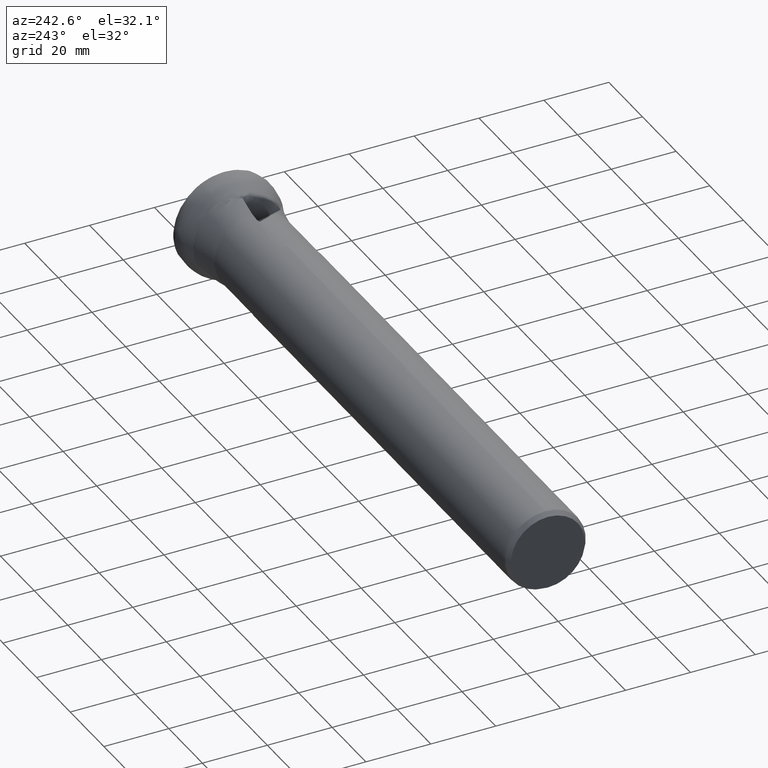
[diagram: clean part render]
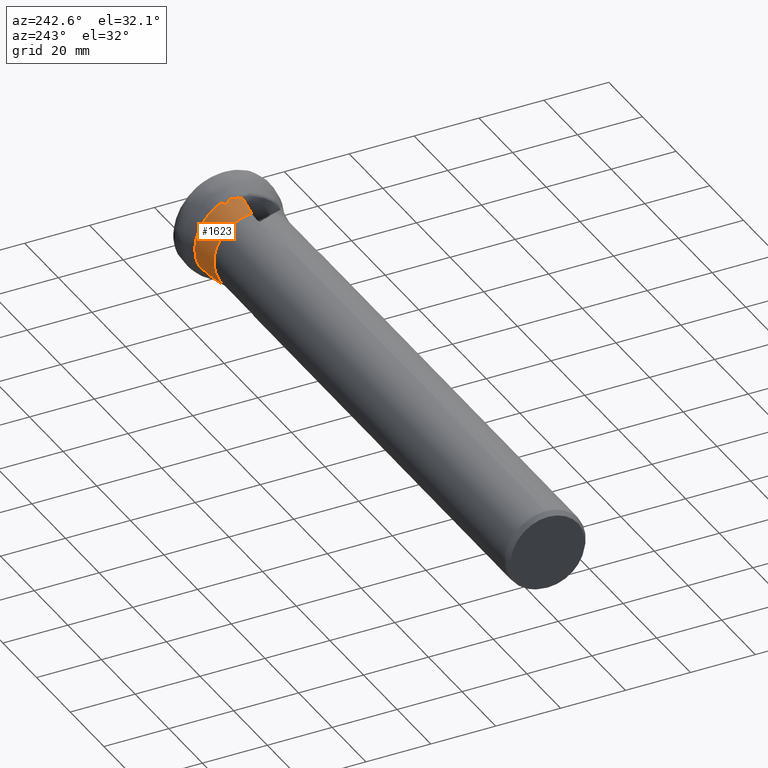
[diagram: same view with one face highlighted and labeled with its STEP entity id]
A machine part, auxiliary view. The second image highlights one B-rep face of the part: STEP entity #1623.
In plain terms, the highlighted conical surface has half-angle 10.845 deg.
Its self-contained STEP definition (entity closure, byte-faithful):
#17 = VERTEX_POINT ( 'NONE', #140 ) ;
#48 = CARTESIAN_POINT ( 'NONE',  ( -12.89099991687611900, 0.3601079019870963600, 13.68158724386874100 ) ) ;
#140 = CARTESIAN_POINT ( 'NONE',  ( -11.02925917703956000, 12.79861067441094800, -5.779395626261756300 ) ) ;
#215 = EDGE_CURVE ( 'NONE', #267, #3379, #2310, .T. ) ;
#258 = CARTESIAN_POINT ( 'NONE',  ( -11.02925917703945500, 0.0000000000000000000, 0.0000000000000000000 ) ) ;
#265 = AXIS2_PLACEMENT_3D ( 'NONE', #4804, #2497, #5194 ) ;
#267 = VERTEX_POINT ( 'NONE', #723 ) ;
#308 = DIRECTION ( 'NONE',  ( 1.000000000000000000, -0.0000000000000000000, -0.0000000000000000000 ) ) ;
#317 = CARTESIAN_POINT ( 'NONE',  ( -12.41499484774846500, 4.575684184903968400, 12.99796450079024300 ) ) ;
#369 = CARTESIAN_POINT ( 'NONE',  ( -13.40527637212814800, 11.74805511178591600, -6.827262013307660000 ) ) ;
#376 = CARTESIAN_POINT ( 'NONE',  ( -12.67995389040324200, 12.14865028361487700, -6.391648894483800800 ) ) ;
#414 = CARTESIAN_POINT ( 'NONE',  ( -12.84699154354206200, 0.4598034669791161200, 13.68703556957243400 ) ) ;
#453 = CARTESIAN_POINT ( 'NONE',  ( -12.56890336999146900, 1.221187558967547800, 13.69412576938039400 ) ) ;
#473 = CARTESIAN_POINT ( 'NONE',  ( -12.45613410986681100, 1.332141020560870600, 13.70504729325338600 ) ) ;
#591 = CARTESIAN_POINT ( 'NONE',  ( -19.32556363557016300, 0.8100564290826706100, 12.42721098533912500 ) ) ;
#717 = DIRECTION ( 'NONE',  ( 1.000000000000000000, -0.0000000000000000000, -0.0000000000000000000 ) ) ;
#723 = CARTESIAN_POINT ( 'NONE',  ( -12.84435909463576800, 0.4954418570034943000, 13.68629653410403400 ) ) ;
#742 = CARTESIAN_POINT ( 'NONE',  ( -11.72448605640247100, 3.855970498631013000, 13.36466385005026900 ) ) ;
#760 = CARTESIAN_POINT ( 'NONE',  ( -12.28883719707391900, 5.221356548987552400, 12.77657326314242200 ) ) ;
#769 = CARTESIAN_POINT ( 'NONE',  ( -12.84435909463576800, 0.4954418570034943000, 13.68629653410403400 ) ) ;
#792 = CARTESIAN_POINT ( 'NONE',  ( -17.69207303484448300, 8.667618504329912100, -9.592486571145551400 ) ) ;
#804 = CARTESIAN_POINT ( 'NONE',  ( -12.84523939015374300, 0.4835626985558640900, 13.68655779933857600 ) ) ;
#819 = CARTESIAN_POINT ( 'NONE',  ( -11.88750792623013200, 12.50377100925288000, -6.027180828594851800 ) ) ;
#822 = CARTESIAN_POINT ( 'NONE',  ( -12.84611687358338200, 0.4716832289750594900, 13.68680414462409300 ) ) ;
#844 = EDGE_LOOP ( 'NONE', ( #5101, #1935, #4055, #3120, #2477, #1312, #2560, #927, #3861, #3454, #4177 ) ) ;
#908 = EDGE_CURVE ( 'NONE', #2673, #17, #4087, .T. ) ;
#927 = ORIENTED_EDGE ( 'NONE', *, *, #1829, .F. ) ;
#940 = EDGE_CURVE ( 'NONE', #5095, #3834, #2419, .T. ) ;
#944 = CARTESIAN_POINT ( 'NONE',  ( -12.86168660798711000, 0.4265649338345133800, 13.68533530213833100 ) ) ;
#1175 = CARTESIAN_POINT ( 'NONE',  ( -12.04374141367470600, 5.541993209497135800, 12.69180577270945100 ) ) ;
#1181 = CONICAL_SURFACE ( 'NONE', #4317, 14.04299999999999700, 0.1892875687147432000 ) ;
#1192 =( BOUNDED_CURVE ( )  B_SPLINE_CURVE ( 3, ( #3697, #4082, #4833, #2519 ),
 .UNSPECIFIED., .F., .F. ) 
 B_SPLINE_CURVE_WITH_KNOTS ( ( 4, 4 ),
 ( 4.313403113203619000, 4.439529772579418500 ),
 .UNSPECIFIED. ) 
 CURVE ( )  GEOMETRIC_REPRESENTATION_ITEM ( )  RATIONAL_B_SPLINE_CURVE ( ( 1.000000000000000000, 0.9986747781023805900, 0.9986747781023805900, 1.000000000000000000 ) ) 
 REPRESENTATION_ITEM ( '' )  );
#1229 = CARTESIAN_POINT ( 'NONE',  ( -11.02925917703956000, 12.79861067441094800, -5.779395626261756300 ) ) ;
#1242 = CARTESIAN_POINT ( 'NONE',  ( -11.61871782507151900, 3.128100680945735200, 13.57430880262749000 ) ) ;
#1275 = EDGE_CURVE ( 'NONE', #1501, #1886, #5232, .T. ) ;
#1312 = ORIENTED_EDGE ( 'NONE', *, *, #1667, .F. ) ;
#1446 = CARTESIAN_POINT ( 'NONE',  ( -11.72448605640247100, 3.855970498631013000, 13.36466385005026900 ) ) ;
#1501 = VERTEX_POINT ( 'NONE', #1446 ) ;
#1552 = EDGE_CURVE ( 'NONE', #2349, #3834, #4308, .T. ) ;
#1596 = CARTESIAN_POINT ( 'NONE',  ( -11.69241055549228200, 5.756689741679960700, 12.66956082630969500 ) ) ;
#1622 = B_SPLINE_CURVE_WITH_KNOTS ( 'NONE', 3,
 ( #4469, #1703, #5220, #2922, #453, #3302 ),
 .UNSPECIFIED., .F., .F.,
 ( 4, 2, 4 ),
 ( 5.421010862427522200E-019, 0.0004689846191887401400, 0.0009379692383774801700 ),
 .UNSPECIFIED. ) ;
#1623 = ADVANCED_FACE ( 'NONE', ( #4719 ), #1181, .T. ) ;
#1667 = EDGE_CURVE ( 'NONE', #17, #3085, #2292, .T. ) ;
#1703 = CARTESIAN_POINT ( 'NONE',  ( -12.83264201964153300, 0.6535580663402837900, 13.68281899243309300 ) ) ;
#1742 = CARTESIAN_POINT ( 'NONE',  ( -11.02925917703947100, 5.760464015571924000, 12.80714266826527000 ) ) ;
#1821 = CARTESIAN_POINT ( 'NONE',  ( -19.32556363557016300, 6.787161694477367400, -10.44156120632593100 ) ) ;
#1829 = EDGE_CURVE ( 'NONE', #5095, #2673, #2563, .T. ) ;
#1886 = VERTEX_POINT ( 'NONE', #1242 ) ;
#1929 = EDGE_CURVE ( 'NONE', #267, #3081, #1622, .T. ) ;
#1935 = ORIENTED_EDGE ( 'NONE', *, *, #1929, .T. ) ;
#2029 = CARTESIAN_POINT ( 'NONE',  ( -11.28786443042186600, 5.820760581350417500, 12.72539041503917500 ) ) ;
#2054 = EDGE_CURVE ( 'NONE', #2349, #3379, #2196, .T. ) ;
#2196 =( BOUNDED_CURVE ( )  B_SPLINE_CURVE ( 3, ( #48, #2577, #944, #3767 ),
 .UNSPECIFIED., .F., .F. ) 
 B_SPLINE_CURVE_WITH_KNOTS ( ( 4, 4 ),
 ( 4.245311037378050000, 4.252302622021335100 ),
 .UNSPECIFIED. ) 
 CURVE ( )  GEOMETRIC_REPRESENTATION_ITEM ( )  RATIONAL_B_SPLINE_CURVE ( ( 1.000000000000000000, 0.9999959264828295300, 0.9999959264828295300, 1.000000000000000000 ) ) 
 REPRESENTATION_ITEM ( '' )  );
#2233 = CARTESIAN_POINT ( 'NONE',  ( -11.69077448769910500, 3.615201630161862100, 13.44085238544985500 ) ) ;
#2281 = CARTESIAN_POINT ( 'NONE',  ( -13.40527637212814800, 11.74805511178591600, -6.827262013307660000 ) ) ;
#2292 = CIRCLE ( 'NONE', #3822, 14.04299999999999700 ) ;
#2310 =( BOUNDED_CURVE ( )  B_SPLINE_CURVE ( 3, ( #769, #804, #822, #414 ),
 .UNSPECIFIED., .F., .F. ) 
 B_SPLINE_CURVE_WITH_KNOTS ( ( 4, 4 ),
 ( 2.767099512888700800, 2.769610021100673300 ),
 .UNSPECIFIED. ) 
 CURVE ( )  GEOMETRIC_REPRESENTATION_ITEM ( )  RATIONAL_B_SPLINE_CURVE ( ( 1.000000000000000000, 0.9999994747791121100, 0.9999994747791121100, 1.000000000000000000 ) ) 
 REPRESENTATION_ITEM ( '' )  );
#2336 = CARTESIAN_POINT ( 'NONE',  ( -15.03643699271819600, 0.5101314769261138200, 13.26647086381266600 ) ) ;
#2349 = VERTEX_POINT ( 'NONE', #4312 ) ;
#2412 = CARTESIAN_POINT ( 'NONE',  ( -11.97107633189266600, 3.954262299965301000, 13.28695688663165900 ) ) ;
#2419 = CIRCLE ( 'NONE', #265, 12.45358439536311000 ) ;
#2430 = CARTESIAN_POINT ( 'NONE',  ( -11.02925917703947100, 5.760464015571924000, 12.80714266826527000 ) ) ;
#2434 = CARTESIAN_POINT ( 'NONE',  ( -12.84699154354206200, 0.4598034669791161200, 13.68703556957243400 ) ) ;
#2460 = CARTESIAN_POINT ( 'NONE',  ( -13.40527637212814800, 11.74805511178591600, -6.827262013307660000 ) ) ;
#2477 = ORIENTED_EDGE ( 'NONE', *, *, #4058, .T. ) ;
#2497 = DIRECTION ( 'NONE',  ( 1.000000000000000000, -0.0000000000000000000, -0.0000000000000000000 ) ) ;
#2519 = CARTESIAN_POINT ( 'NONE',  ( -11.61871782507151900, 3.128100680945735200, 13.57430880262749000 ) ) ;
#2560 = ORIENTED_EDGE ( 'NONE', *, *, #908, .F. ) ;
#2563 =( BOUNDED_CURVE ( )  B_SPLINE_CURVE ( 3, ( #3627, #792, #2852, #369 ),
 .UNSPECIFIED., .F., .T. ) 
 B_SPLINE_CURVE_WITH_KNOTS ( ( 4, 4 ),
 ( 3.833724541972454200, 4.245131218430410400 ),
 .UNSPECIFIED. ) 
 CURVE ( )  GEOMETRIC_REPRESENTATION_ITEM ( )  RATIONAL_B_SPLINE_CURVE ( ( 1.000000000000000000, 0.9859450438682444400, 0.9859450438682444400, 1.000000000000000000 ) ) 
 REPRESENTATION_ITEM ( '' )  );
#2577 = CARTESIAN_POINT ( 'NONE',  ( -12.87635612552166400, 0.3933329434660878300, 13.68351918617245900 ) ) ;
#2623 = CARTESIAN_POINT ( 'NONE',  ( -11.61871782507151900, 3.128100680945735200, 13.57430880262749000 ) ) ;
#2673 = VERTEX_POINT ( 'NONE', #2281 ) ;
#2724 = CARTESIAN_POINT ( 'NONE',  ( -12.89099991687611900, 0.3601079019870963600, 13.68158724386874100 ) ) ;
#2757 = DIRECTION ( 'NONE',  ( 0.0000000000000000000, 0.0000000000000000000, -1.000000000000000000 ) ) ;
#2794 = CARTESIAN_POINT ( 'NONE',  ( -11.02925917703945500, 0.0000000000000000000, 0.0000000000000000000 ) ) ;
#2799 = CARTESIAN_POINT ( 'NONE',  ( -12.24891362570656700, 4.225692566706039000, 13.14752064669827500 ) ) ;
#2852 = CARTESIAN_POINT ( 'NONE',  ( -15.69051209583769900, 10.34482267446805000, -8.370545850244928600 ) ) ;
#2857 = CARTESIAN_POINT ( 'NONE',  ( -13.05387708437950600, 11.95480769069662100, -6.600295948096653700 ) ) ;
#2922 = CARTESIAN_POINT ( 'NONE',  ( -12.65968949744193100, 1.092421151764783500, 13.68785800798146600 ) ) ;
#3081 = VERTEX_POINT ( 'NONE', #473 ) ;
#3085 = VERTEX_POINT ( 'NONE', #1742 ) ;
#3117 = CARTESIAN_POINT ( 'NONE',  ( -19.32556363557016300, 0.8100564290826706100, 12.42721098533912500 ) ) ;
#3120 = ORIENTED_EDGE ( 'NONE', *, *, #1275, .F. ) ;
#3191 = DIRECTION ( 'NONE',  ( 0.0000000000000000000, 0.0000000000000000000, -1.000000000000000000 ) ) ;
#3196 = CARTESIAN_POINT ( 'NONE',  ( -12.42266830427820400, 4.850775564743093700, 12.89638039453811500 ) ) ;
#3232 = B_SPLINE_CURVE_WITH_KNOTS ( 'NONE', 3,
 ( #742, #4345, #2412, #5099, #2799, #317, #3196, #760, #3594, #1175, #3982, #1596, #4365, #2029, #4746, #2430 ),
 .UNSPECIFIED., .F., .F.,
 ( 4, 2, 2, 2, 2, 2, 2, 4 ),
 ( 0.0007991746535138704500, 0.001210006896252163600, 0.001620839138990457000, 0.002442503624467039700, 0.002853335867205332500, 0.003264168109943626300, 0.003675000352681919100, 0.004085832595420212400 ),
 .UNSPECIFIED. ) ;
#3241 = CARTESIAN_POINT ( 'NONE',  ( -12.48504738997486500, 12.24146170361674100, -6.293735298369111500 ) ) ;
#3302 = CARTESIAN_POINT ( 'NONE',  ( -12.45613410986681100, 1.332141020560870600, 13.70504729325338600 ) ) ;
#3379 = VERTEX_POINT ( 'NONE', #2434 ) ;
#3454 = ORIENTED_EDGE ( 'NONE', *, *, #1552, .F. ) ;
#3568 = EDGE_CURVE ( 'NONE', #3081, #1886, #1192, .T. ) ;
#3594 = CARTESIAN_POINT ( 'NONE',  ( -12.22003834502696200, 5.338741713531539400, 12.74202179998643400 ) ) ;
#3627 = CARTESIAN_POINT ( 'NONE',  ( -19.32556363557016300, 6.787161694477367400, -10.44156120632593100 ) ) ;
#3651 = CARTESIAN_POINT ( 'NONE',  ( -11.46885745437929300, 12.65918113405048300, -5.883527716521681100 ) ) ;
#3697 = CARTESIAN_POINT ( 'NONE',  ( -12.45613410986681100, 1.332141020560870600, 13.70504729325338600 ) ) ;
#3767 = CARTESIAN_POINT ( 'NONE',  ( -12.84699154354206200, 0.4598034669791161200, 13.68703556957243400 ) ) ;
#3822 = AXIS2_PLACEMENT_3D ( 'NONE', #2794, #308, #3191 ) ;
#3834 = VERTEX_POINT ( 'NONE', #591 ) ;
#3861 = ORIENTED_EDGE ( 'NONE', *, *, #940, .T. ) ;
#3982 = CARTESIAN_POINT ( 'NONE',  ( -11.93425015969770800, 5.629634269328687600, 12.67584741099212800 ) ) ;
#4055 = ORIENTED_EDGE ( 'NONE', *, *, #3568, .T. ) ;
#4058 = EDGE_CURVE ( 'NONE', #1501, #3085, #3232, .T. ) ;
#4082 = CARTESIAN_POINT ( 'NONE',  ( -12.18333096745414700, 1.933032816898223800, 13.69915040932523300 ) ) ;
#4087 = B_SPLINE_CURVE_WITH_KNOTS ( 'NONE', 3,
 ( #2460, #4774, #2857, #376, #3241, #819, #3651, #1229 ),
 .UNSPECIFIED., .F., .F.,
 ( 4, 2, 2, 4 ),
 ( 0.001854466259670866300, 0.002552476317175826500, 0.003250486374680786700, 0.004646506489690705400 ),
 .UNSPECIFIED. ) ;
#4177 = ORIENTED_EDGE ( 'NONE', *, *, #2054, .T. ) ;
#4308 = B_SPLINE_CURVE_WITH_KNOTS ( 'NONE', 3,
 ( #2724, #2336, #4657, #3117 ),
 .UNSPECIFIED., .F., .F.,
 ( 4, 4 ),
 ( 0.001911628657586062100, 0.008482740963261573700 ),
 .UNSPECIFIED. ) ;
#4312 = CARTESIAN_POINT ( 'NONE',  ( -12.89099991687611900, 0.3601079019870963600, 13.68158724386874100 ) ) ;
#4317 = AXIS2_PLACEMENT_3D ( 'NONE', #258, #717, #2757 ) ;
#4345 = CARTESIAN_POINT ( 'NONE',  ( -11.85197154873805800, 3.891246684008768100, 13.32906590709901100 ) ) ;
#4365 = CARTESIAN_POINT ( 'NONE',  ( -11.55707066959855400, 5.797353579835297300, 12.67938270581019500 ) ) ;
#4469 = CARTESIAN_POINT ( 'NONE',  ( -12.84435909463576800, 0.4954418570034943000, 13.68629653410403400 ) ) ;
#4560 = CARTESIAN_POINT ( 'NONE',  ( -11.65551045496850900, 3.372523609063520200, 13.51074980527485700 ) ) ;
#4657 = CARTESIAN_POINT ( 'NONE',  ( -17.18134999652361500, 0.6601184051783788300, 12.84864728124196600 ) ) ;
#4719 = FACE_OUTER_BOUND ( 'NONE', #844, .T. ) ;
#4746 = CARTESIAN_POINT ( 'NONE',  ( -11.15284432077056000, 5.804089934160671800, 12.76155905687825900 ) ) ;
#4774 = CARTESIAN_POINT ( 'NONE',  ( -13.23318890809382100, 11.85372417212983200, -6.711046517887084800 ) ) ;
#4804 = CARTESIAN_POINT ( 'NONE',  ( -19.32556363557016300, 0.0000000000000000000, 0.0000000000000000000 ) ) ;
#4833 = CARTESIAN_POINT ( 'NONE',  ( -11.90382179417870700, 2.532480438140658900, 13.65551308330994700 ) ) ;
#4929 = CARTESIAN_POINT ( 'NONE',  ( -11.72448605640247100, 3.855970498631013000, 13.36466385005026900 ) ) ;
#5095 = VERTEX_POINT ( 'NONE', #1821 ) ;
#5099 = CARTESIAN_POINT ( 'NONE',  ( -12.16915344194402600, 4.121518504424051000, 13.19628091575961000 ) ) ;
#5101 = ORIENTED_EDGE ( 'NONE', *, *, #215, .F. ) ;
#5194 = DIRECTION ( 'NONE',  ( 0.0000000000000000000, 0.0000000000000000000, -1.000000000000000000 ) ) ;
#5220 = CARTESIAN_POINT ( 'NONE',  ( -12.79277196986690000, 0.8059744644325048700, 13.68216871123295600 ) ) ;
#5232 =( BOUNDED_CURVE ( )  B_SPLINE_CURVE ( 3, ( #4929, #2233, #4560, #2623 ),
 .UNSPECIFIED., .F., .T. ) 
 B_SPLINE_CURVE_WITH_KNOTS ( ( 4, 4 ),
 ( 3.652655049215867100, 3.704687454947443600 ),
 .UNSPECIFIED. ) 
 CURVE ( )  GEOMETRIC_REPRESENTATION_ITEM ( )  RATIONAL_B_SPLINE_CURVE ( ( 1.000000000000000000, 0.9997743984546447700, 0.9997743984546447700, 1.000000000000000000 ) ) 
 REPRESENTATION_ITEM ( '' )  );